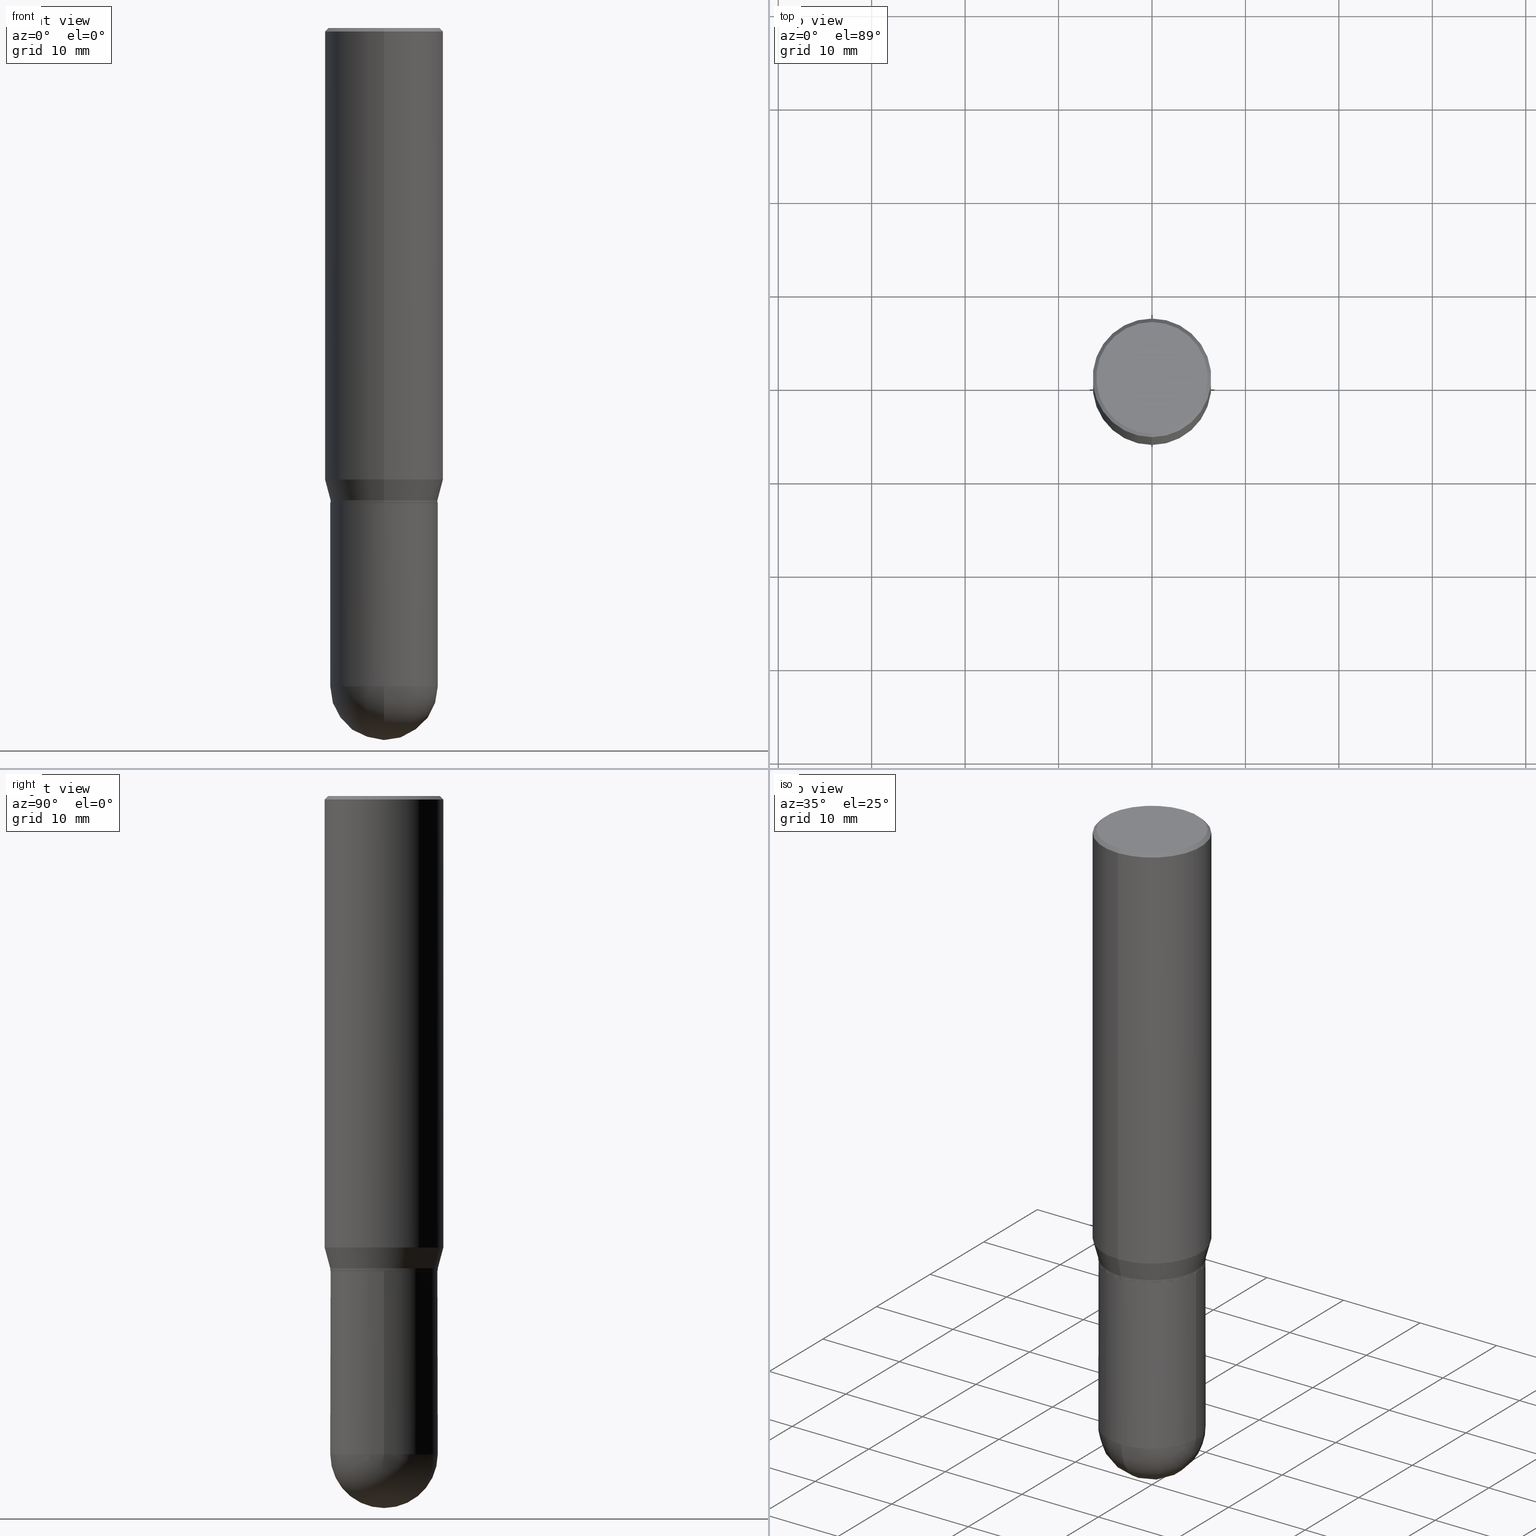
[diagram: canonical four-view strip — front | top / right | iso, engineering-drawing reading convention]
A machine part, canonical four-view strip (front | top / right | iso — engineering-drawing reading convention). The complete STEP part file that produces these views, byte-faithful:
ISO-10303-21;
HEADER;
FILE_DESCRIPTION (( 'STEP AP203' ),
    '1' );
FILE_NAME ('30879.STEP',
    '2024-03-08T15:42:41',
    ( '' ),
    ( '' ),
    'SwSTEP 2.0',
    'SolidWorks 2023',
    '' );
FILE_SCHEMA (( 'CONFIG_CONTROL_DESIGN' ));
ENDSEC;

DATA;
#1 = VERTEX_POINT ( 'NONE', #313 ) ;
#2 = EDGE_CURVE ( 'NONE', #148, #225, #274, .T. ) ;
#3 = ORIENTED_EDGE ( 'NONE', *, *, #407, .F. ) ;
#4 = LINE ( 'NONE', #319, #181 ) ;
#5 = CARTESIAN_POINT ( 'NONE',  ( 3.668330561719621031E-31, -5.237039632319515294E-17, -0.01500000000000010179 ) ) ;
#6 = DIRECTION ( 'NONE',  ( 6.982962677686265133E-15, 1.000000000000000000, 0.000000000000000000 ) ) ;
#7 = DIRECTION ( 'NONE',  ( -6.982962677686265922E-15, -1.000000000000000000, 3.617543138818270030E-15 ) ) ;
#8 = CONICAL_SURFACE ( 'NONE', #430, 0.2500000000000000000, 0.7853981633974485010 ) ;
#9 = ADVANCED_FACE ( 'NONE', ( #238 ), #404, .T. ) ;
#10 = AXIS2_PLACEMENT_3D ( 'NONE', #109, #433, #75 ) ;
#11 = MANIFOLD_SOLID_BREP ( 'Body-Move/Copy2[2]', #371 ) ;
#12 = CARTESIAN_POINT ( 'NONE',  ( 1.776356839400296613E-15, 0.2499999999999933664, -1.902483408562511302 ) ) ;
#13 = CARTESIAN_POINT ( 'NONE',  ( 1.693368449338919598E-15, 0.2349999999999999867, -9.234465523360647217E-16 ) ) ;
#14 = CARTESIAN_POINT ( 'NONE',  ( 4.890937612370273754E-29, -6.982962677686291954E-15, -2.000000000000000444 ) ) ;
#15 = PRODUCT_DEFINITION_SHAPE ( 'NONE', 'NONE',  #355 ) ;
#16 = CARTESIAN_POINT ( 'NONE',  ( 1.581990194629872833E-15, 0.2265499999999930625, -2.000000000000000888 ) ) ;
#17 = EDGE_CURVE ( 'NONE', #343, #127, #4, .T. ) ;
#18 = VERTEX_POINT ( 'NONE', #406 ) ;
#19 = APPROVAL_STATUS ( 'not_yet_approved' ) ;
#20 = AXIS2_PLACEMENT_3D ( 'NONE', #231, #387, #195 ) ;
#21 = CIRCLE ( 'NONE', #220, 0.2265499999999999459 ) ;
#22 = APPROVAL_ROLE ( '' ) ;
#23 = EDGE_CURVE ( 'NONE', #462, #28, #87, .T. ) ;
#24 = ORIENTED_EDGE ( 'NONE', *, *, #351, .T. ) ;
#25 = CARTESIAN_POINT ( 'NONE',  ( 0.000000000000000000, 0.000000000000000000, 0.000000000000000000 ) ) ;
#26 = APPROVAL ( #420, 'UNSPECIFIED' ) ;
#27 = AXIS2_PLACEMENT_3D ( 'NONE', #165, #200, #353 ) ;
#28 = VERTEX_POINT ( 'NONE', #240 ) ;
#29 = SECURITY_CLASSIFICATION ( '', '', #147 ) ;
#30 = CARTESIAN_POINT ( 'NONE',  ( 6.782385460514168389E-29, -9.683448919214523504E-15, -2.773450000000000415 ) ) ;
#31 = EDGE_CURVE ( 'NONE', #343, #89, #267, .T. ) ;
#32 = DIMENSIONAL_EXPONENTS ( 1.000000000000000000, 0.000000000000000000, 0.000000000000000000, 0.000000000000000000, 0.000000000000000000, 0.000000000000000000, 0.000000000000000000 ) ;
#33 = FACE_OUTER_BOUND ( 'NONE', #388, .T. ) ;
#34 = CIRCLE ( 'NONE', #218, 0.2265499999999999736 ) ;
#35 = CARTESIAN_POINT ( 'NONE',  ( 0.2265500000000000291, -9.915195993080232639E-15, -2.773450000000000415 ) ) ;
#36 = CC_DESIGN_PERSON_AND_ORGANIZATION_ASSIGNMENT ( #325, #411, ( #424 ) ) ;
#37 = CARTESIAN_POINT ( 'NONE',  ( 3.668330561719621031E-31, -5.237039632319515294E-17, -0.01500000000000010179 ) ) ;
#38 = DIRECTION ( 'NONE',  ( -2.445553707813064024E-29, 3.491359754879653000E-15, 1.000000000000000000 ) ) ;
#39 = CARTESIAN_POINT ( 'NONE',  ( 4.889884638772221761E-29, -6.980973829881867702E-15, -1.999500000000000277 ) ) ;
#40 = ADVANCED_FACE ( 'NONE', ( #418 ), #342, .T. ) ;
#41 = ORIENTED_EDGE ( 'NONE', *, *, #407, .T. ) ;
#42 = UNCERTAINTY_MEASURE_WITH_UNIT (LENGTH_MEASURE( 1.000000000000000082E-05 ), #179, 'distance_accuracy_value', 'NONE');
#43 = ORIENTED_EDGE ( 'NONE', *, *, #441, .T. ) ;
#44 = AXIS2_PLACEMENT_3D ( 'NONE', #234, #402, #305 ) ;
#45 = DIRECTION ( 'NONE',  ( -1.000000000000000000, 7.105427357601001070E-15, -4.926315508542082329E-29 ) ) ;
#46 = CARTESIAN_POINT ( 'NONE',  ( 0.000000000000000000, 0.000000000000000000, 0.000000000000000000 ) ) ;
#47 = DIRECTION ( 'NONE',  ( 1.000000000000000000, -6.982962677686265922E-15, 4.883557194083112340E-29 ) ) ;
#48 = CARTESIAN_POINT ( 'NONE',  ( -1.581990194629774423E-15, -0.2265500000000069125, -1.989999999999999547 ) ) ;
#49 = DIRECTION ( 'NONE',  ( -2.445468806185136597E-29, 3.491481338843145583E-15, 1.000000000000000000 ) ) ;
#50 = FACE_OUTER_BOUND ( 'NONE', #170, .T. ) ;
#51 = CARTESIAN_POINT ( 'NONE',  ( -1.663670764459595899E-15, -0.2349999999999999867, 7.174925324573721132E-16 ) ) ;
#52 = PERSON_AND_ORGANIZATION ( #510, #323 ) ;
#53 = DIRECTION ( 'NONE',  ( -6.982962677686265922E-15, -1.000000000000000000, 3.491643216902136408E-15 ) ) ;
#54 = CARTESIAN_POINT ( 'NONE',  ( 4.866651878547998394E-29, -6.947805912210510858E-15, -1.990000000000000435 ) ) ;
#55 = ADVANCED_FACE ( 'NONE', ( #157 ), #77, .F. ) ;
#56 =( GEOMETRIC_REPRESENTATION_CONTEXT ( 3 ) GLOBAL_UNCERTAINTY_ASSIGNED_CONTEXT ( ( #42 ) ) GLOBAL_UNIT_ASSIGNED_CONTEXT ( ( #179, #283, #414 ) ) REPRESENTATION_CONTEXT ( 'NONE', 'WORKASPACE' ) );
#57 = DIRECTION ( 'NONE',  ( 1.000000000000000000, -6.982962677686266711E-15, 0.000000000000000000 ) ) ;
#58 = LOCAL_TIME ( 10, 42, 41.00000000000000000, #381 ) ;
#59 = EDGE_CURVE ( 'NONE', #505, #241, #246, .T. ) ;
#60 = PLANE ( 'NONE',  #72 ) ;
#61 = DIRECTION ( 'NONE',  ( 0.000000000000000000, 0.000000000000000000, 1.000000000000000000 ) ) ;
#62 = ADVANCED_FACE ( 'NONE', ( #307 ), #435, .T. ) ;
#63 = ORIENTED_EDGE ( 'NONE', *, *, #115, .F. ) ;
#64 = VECTOR ( 'NONE', #149, 39.37007874015748143 ) ;
#65 = CIRCLE ( 'NONE', #100, 0.2260500000000000287 ) ;
#66 = CARTESIAN_POINT ( 'NONE',  ( -0.2265500000000000291, -6.723471230585900551E-15, -2.773450000000000415 ) ) ;
#67 = VERTEX_POINT ( 'NONE', #268 ) ;
#68 = PERSON_AND_ORGANIZATION_ROLE ( 'design_supplier' ) ;
#69 = APPROVAL_STATUS ( 'not_yet_approved' ) ;
#70 = AXIS2_PLACEMENT_3D ( 'NONE', #455, #45, #459 ) ;
#71 = EDGE_LOOP ( 'NONE', ( #333, #398, #503, #447 ) ) ;
#72 = AXIS2_PLACEMENT_3D ( 'NONE', #16, #180, #237 ) ;
#73 = FACE_OUTER_BOUND ( 'NONE', #222, .T. ) ;
#74 = EDGE_CURVE ( 'NONE', #229, #148, #273, .T. ) ;
#75 = DIRECTION ( 'NONE',  ( 6.982962677686265922E-15, 1.000000000000000000, -2.411695425878847213E-15 ) ) ;
#76 = APPROVAL ( #69, 'UNSPECIFIED' ) ;
#77 = PLANE ( 'NONE',  #20 ) ;
#78 = ORIENTED_EDGE ( 'NONE', *, *, #74, .T. ) ;
#79 = VERTEX_POINT ( 'NONE', #438 ) ;
#80 = CARTESIAN_POINT ( 'NONE',  ( -1.581990194629823332E-15, -0.2265499999999999736, 7.909675524679853217E-16 ) ) ;
#81 = DIRECTION ( 'NONE',  ( -6.982962677686265922E-15, -1.000000000000000000, 3.617543138818270030E-15 ) ) ;
#82 = DIRECTION ( 'NONE',  ( -2.445468806185136597E-29, 3.491481338843145583E-15, 1.000000000000000000 ) ) ;
#83 = ORIENTED_EDGE ( 'NONE', *, *, #124, .F. ) ;
#84 = CIRCLE ( 'NONE', #154, 0.2265500000000000291 ) ;
#85 = CYLINDRICAL_SURFACE ( 'NONE', #278, 0.2265500000000000291 ) ;
#86 = VECTOR ( 'NONE', #249, 39.37007874015748854 ) ;
#87 = LINE ( 'NONE', #277, #126 ) ;
#88 = EDGE_CURVE ( 'NONE', #494, #148, #34, .T. ) ;
#89 = VERTEX_POINT ( 'NONE', #51 ) ;
#90 = MECHANICAL_CONTEXT ( 'NONE', #188, 'mechanical' ) ;
#91 = CARTESIAN_POINT ( 'NONE',  ( 6.784390825462294501E-29, -9.680577122470524352E-15, -2.773450000000000415 ) ) ;
#92 = CIRCLE ( 'NONE', #70, 0.2265499999999999459 ) ;
#93 = CONICAL_SURFACE ( 'NONE', #155, 0.2260500000000000287, 0.7853981633974824739 ) ;
#94 = CARTESIAN_POINT ( 'NONE',  ( 1.609734567864555299E-15, 0.2265499999999930347, -1.990000000000001101 ) ) ;
#95 = CC_DESIGN_PERSON_AND_ORGANIZATION_ASSIGNMENT ( #286, #373, ( #355 ) ) ;
#96 = ORIENTED_EDGE ( 'NONE', *, *, #476, .F. ) ;
#97 = ORIENTED_EDGE ( 'NONE', *, *, #322, .T. ) ;
#98 = ORIENTED_EDGE ( 'NONE', *, *, #347, .F. ) ;
#99 = DIRECTION ( 'NONE',  ( 1.000000000000000000, -6.982962677686266711E-15, 0.000000000000000000 ) ) ;
#100 = AXIS2_PLACEMENT_3D ( 'NONE', #133, #135, #458 ) ;
#101 = ORIENTED_EDGE ( 'NONE', *, *, #508, .T. ) ;
#102 = CALENDAR_DATE ( 2024, 8, 3 ) ;
#103 = DATE_AND_TIME ( #102, #58 ) ;
#104 = EDGE_CURVE ( 'NONE', #28, #1, #429, .T. ) ;
#105 = DIRECTION ( 'NONE',  ( -6.982962677686265922E-15, -1.000000000000000000, 3.617543138818270030E-15 ) ) ;
#106 = VECTOR ( 'NONE', #324, 39.37007874015748143 ) ;
#107 = ORIENTED_EDGE ( 'NONE', *, *, #2, .F. ) ;
#108 = AXIS2_PLACEMENT_3D ( 'NONE', #163, #197, #511 ) ;
#109 = CARTESIAN_POINT ( 'NONE',  ( 6.784390825462294501E-29, -9.680577122470524352E-15, -2.773450000000000415 ) ) ;
#110 = DIRECTION ( 'NONE',  ( -6.982962677686265922E-15, -1.000000000000000000, 3.491359754879653000E-15 ) ) ;
#111 = DIRECTION ( 'NONE',  ( 6.982962677686265922E-15, 1.000000000000000000, -3.491643216902136408E-15 ) ) ;
#112 = DIRECTION ( 'NONE',  ( -2.445553707813064024E-29, 3.491359754879653000E-15, 1.000000000000000000 ) ) ;
#113 = AXIS2_PLACEMENT_3D ( 'NONE', #150, #379, #337 ) ;
#114 = LOCAL_TIME ( 10, 42, 41.00000000000000000, #226 ) ;
#115 = EDGE_CURVE ( 'NONE', #241, #166, #375, .T. ) ;
#116 = DIRECTION ( 'NONE',  ( -6.982962677686265922E-15, -1.000000000000000000, 3.491359754879653000E-15 ) ) ;
#117 = EDGE_LOOP ( 'NONE', ( #352, #145, #335, #294, #487 ) ) ;
#118 = CARTESIAN_POINT ( 'NONE',  ( 6.782385460514168389E-29, -9.683448919214523504E-15, -2.773450000000000415 ) ) ;
#119 = APPLICATION_CONTEXT ( 'configuration controlled 3d designs of mechanical parts and assemblies' ) ;
#120 = CARTESIAN_POINT ( 'NONE',  ( -1.581990194629774028E-15, -0.2265500000000069125, -1.999499999999999611 ) ) ;
#121 = DIRECTION ( 'NONE',  ( -2.445553707813064024E-29, 3.491359754879653000E-15, 1.000000000000000000 ) ) ;
#122 = EDGE_LOOP ( 'NONE', ( #271, #432, #483, #363 ) ) ;
#123 = FACE_OUTER_BOUND ( 'NONE', #416, .T. ) ;
#124 = EDGE_CURVE ( 'NONE', #251, #166, #92, .T. ) ;
#125 = DIRECTION ( 'NONE',  ( 4.937700262164548831E-15, 0.7071067811865452413, -0.7071067811865497932 ) ) ;
#126 = VECTOR ( 'NONE', #445, 39.37007874015748143 ) ;
#127 = VERTEX_POINT ( 'NONE', #490 ) ;
#128 = CIRCLE ( 'NONE', #196, 0.2500000000000000000 ) ;
#129 = CARTESIAN_POINT ( 'NONE',  ( 4.890937612370273754E-29, -6.982962677686291954E-15, -2.000000000000000444 ) ) ;
#130 = CC_DESIGN_APPROVAL ( #76, ( #189 ) ) ;
#131 = APPLICATION_PROTOCOL_DEFINITION ( 'international standard', 'config_control_design', 1994, #188 ) ;
#132 = ADVANCED_FACE ( 'NONE', ( #138 ), #85, .T. ) ;
#133 = CARTESIAN_POINT ( 'NONE',  ( 4.891107415626128608E-29, -6.982719509759306788E-15, -2.000000000000000444 ) ) ;
#134 = CALENDAR_DATE ( 2024, 8, 3 ) ;
#135 = DIRECTION ( 'NONE',  ( -2.445553707813064024E-29, 3.491359754879653000E-15, 1.000000000000000000 ) ) ;
#136 = ORIENTED_EDGE ( 'NONE', *, *, #88, .T. ) ;
#137 = CIRCLE ( 'NONE', #493, 0.2500000000000000000 ) ;
#138 = FACE_OUTER_BOUND ( 'NONE', #199, .T. ) ;
#139 =( LENGTH_UNIT ( ) NAMED_UNIT ( * ) SI_UNIT ( $, .METRE. ) );
#140 = ADVANCED_FACE ( 'NONE', ( #367 ), #169, .T. ) ;
#141 = PERSON_AND_ORGANIZATION_ROLE ( 'classification_officer' ) ;
#142 = CLOSED_SHELL ( 'NONE', ( #132, #301, #378, #62, #9 ) ) ;
#143 = LOCAL_TIME ( 10, 42, 41.00000000000000000, #488 ) ;
#144 = APPROVAL_PERSON_ORGANIZATION ( #185, #26, #22 ) ;
#145 = ORIENTED_EDGE ( 'NONE', *, *, #115, .T. ) ;
#146 = EDGE_CURVE ( 'NONE', #494, #79, #164, .T. ) ;
#147 = SECURITY_CLASSIFICATION_LEVEL ( 'unclassified' ) ;
#148 = VERTEX_POINT ( 'NONE', #120 ) ;
#149 = DIRECTION ( 'NONE',  ( -2.445468806185136877E-29, 3.491481338843145188E-15, 1.000000000000000000 ) ) ;
#150 = CARTESIAN_POINT ( 'NONE',  ( 2.518358084766711296E-45, -3.595297881800758106E-31, -1.029770099393463289E-16 ) ) ;
#151 = ORIENTED_EDGE ( 'NONE', *, *, #74, .F. ) ;
#152 = PERSON_AND_ORGANIZATION ( #510, #323 ) ;
#153 = EDGE_CURVE ( 'NONE', #79, #225, #471, .T. ) ;
#154 = AXIS2_PLACEMENT_3D ( 'NONE', #30, #504, #99 ) ;
#155 = AXIS2_PLACEMENT_3D ( 'NONE', #230, #38, #156 ) ;
#156 = DIRECTION ( 'NONE',  ( -6.982962677686265133E-15, -1.000000000000000000, 3.625544782567037861E-15 ) ) ;
#157 = FACE_OUTER_BOUND ( 'NONE', #167, .T. ) ;
#158 = CARTESIAN_POINT ( 'NONE',  ( 0.000000000000000000, 0.000000000000000000, 0.000000000000000000 ) ) ;
#159 = DIRECTION ( 'NONE',  ( 1.000000000000000000, -6.982962677686266711E-15, 0.000000000000000000 ) ) ;
#160 = ORIENTED_EDGE ( 'NONE', *, *, #31, .F. ) ;
#161 = FACE_OUTER_BOUND ( 'NONE', #344, .T. ) ;
#162 = AXIS2_PLACEMENT_3D ( 'NONE', #158, #112, #266 ) ;
#163 = CARTESIAN_POINT ( 'NONE',  ( 6.782385460514168389E-29, -9.683448919214523504E-15, -2.773450000000000415 ) ) ;
#164 = LINE ( 'NONE', #316, #106 ) ;
#165 = CARTESIAN_POINT ( 'NONE',  ( 6.784390825462294501E-29, -9.680577122470524352E-15, -2.773450000000000415 ) ) ;
#166 = VERTEX_POINT ( 'NONE', #334 ) ;
#167 = EDGE_LOOP ( 'NONE', ( #98, #227 ) ) ;
#168 = DIRECTION ( 'NONE',  ( -6.982962677686265922E-15, -1.000000000000000000, 3.491643216902136408E-15 ) ) ;
#169 = CONICAL_SURFACE ( 'NONE', #492, 0.2265499999999999736, 0.2617993877991505181 ) ;
#170 = EDGE_LOOP ( 'NONE', ( #298, #235 ) ) ;
#171 = CARTESIAN_POINT ( 'NONE',  ( 4.866651878547998394E-29, -6.947805912210510858E-15, -1.990000000000000435 ) ) ;
#172 = AXIS2_PLACEMENT_3D ( 'NONE', #202, #390, #356 ) ;
#173 = DIRECTION ( 'NONE',  ( -6.982962677686266711E-15, -1.000000000000000000, 3.491359754879653394E-15 ) ) ;
#174 = DIRECTION ( 'NONE',  ( -2.445468806185136597E-29, 3.491481338843145583E-15, 1.000000000000000000 ) ) ;
#175 = DIRECTION ( 'NONE',  ( -2.445553707813064024E-29, 3.491359754879653000E-15, 1.000000000000000000 ) ) ;
#176 = DATE_AND_TIME ( #134, #143 ) ;
#177 = PRODUCT_RELATED_PRODUCT_CATEGORY ( 'detail', '', ( #424 ) ) ;
#178 = ORIENTED_EDGE ( 'NONE', *, *, #17, .F. ) ;
#179 =( CONVERSION_BASED_UNIT ( 'INCH', #252 ) LENGTH_UNIT ( ) NAMED_UNIT ( #32 ) );
#180 = DIRECTION ( 'NONE',  ( 2.438088387897960049E-29, -3.491481338843145188E-15, -1.000000000000000000 ) ) ;
#181 = VECTOR ( 'NONE', #125, 39.37007874015748143 ) ;
#182 = AXIS2_PLACEMENT_3D ( 'NONE', #473, #205, #396 ) ;
#183 = APPROVAL_DATE_TIME ( #103, #26 ) ;
#184 = ORIENTED_EDGE ( 'NONE', *, *, #104, .T. ) ;
#185 = PERSON_AND_ORGANIZATION ( #510, #323 ) ;
#186 = CC_DESIGN_PERSON_AND_ORGANIZATION_ASSIGNMENT ( #415, #141, ( #29 ) ) ;
#187 = CYLINDRICAL_SURFACE ( 'NONE', #391, 0.2500000000000000000 ) ;
#188 = APPLICATION_CONTEXT ( 'configuration controlled 3d designs of mechanical parts and assemblies' ) ;
#189 = PRODUCT_DEFINITION_FORMATION_WITH_SPECIFIED_SOURCE ( 'ANY', '', #424, .NOT_KNOWN. ) ;
#190 = ORIENTED_EDGE ( 'NONE', *, *, #347, .T. ) ;
#191 = CARTESIAN_POINT ( 'NONE',  ( -1.745740669421566480E-15, -0.2500000000000000000, 8.728399387199132499E-16 ) ) ;
#192 = MANIFOLD_SOLID_BREP ( 'Body-Move/Copy2[1]', #142 ) ;
#193 = EDGE_CURVE ( 'NONE', #166, #462, #84, .T. ) ;
#194 = DIRECTION ( 'NONE',  ( -2.445553707813064024E-29, 3.491359754879653000E-15, 1.000000000000000000 ) ) ;
#195 = DIRECTION ( 'NONE',  ( -6.982962677686265922E-15, -1.000000000000000000, 3.491359754879653000E-15 ) ) ;
#196 = AXIS2_PLACEMENT_3D ( 'NONE', #243, #417, #491 ) ;
#197 = DIRECTION ( 'NONE',  ( -2.445468806185136597E-29, 3.491481338843145583E-15, 1.000000000000000000 ) ) ;
#198 = CARTESIAN_POINT ( 'NONE',  ( 4.866651878547998394E-29, -6.947805912210510858E-15, -1.990000000000000435 ) ) ;
#199 = EDGE_LOOP ( 'NONE', ( #365, #281, #354, #203, #336 ) ) ;
#200 = DIRECTION ( 'NONE',  ( -1.000000000000000000, 6.982962677686265922E-15, -4.883557194083112901E-29 ) ) ;
#201 = ORIENTED_EDGE ( 'NONE', *, *, #153, .F. ) ;
#202 = CARTESIAN_POINT ( 'NONE',  ( 1.640996229256272519E-15, 0.2349999999999999867, -8.719580473663915449E-16 ) ) ;
#203 = ORIENTED_EDGE ( 'NONE', *, *, #23, .F. ) ;
#204 = LINE ( 'NONE', #48, #247 ) ;
#205 = DIRECTION ( 'NONE',  ( -2.445553707813064024E-29, 3.491359754879653000E-15, 1.000000000000000000 ) ) ;
#206 = CIRCLE ( 'NONE', #330, 0.2260500000000000287 ) ;
#207 = DIRECTION ( 'NONE',  ( -2.445468806185136597E-29, 3.491481338843145583E-15, 1.000000000000000000 ) ) ;
#208 = ORIENTED_EDGE ( 'NONE', *, *, #193, .F. ) ;
#209 = CARTESIAN_POINT ( 'NONE',  ( 0.000000000000000000, 0.000000000000000000, 0.000000000000000000 ) ) ;
#210 = DIRECTION ( 'NONE',  ( 1.000000000000000000, -6.982962677686266711E-15, 4.876176775795935793E-29 ) ) ;
#211 = DIRECTION ( 'NONE',  ( 1.000000000000000000, -6.982962677686266711E-15, 0.000000000000000000 ) ) ;
#212 = EDGE_CURVE ( 'NONE', #499, #127, #377, .T. ) ;
#213 = AXIS2_PLACEMENT_3D ( 'NONE', #448, #452, #53 ) ;
#214 = EDGE_CURVE ( 'NONE', #241, #1, #465, .T. ) ;
#215 = DIRECTION ( 'NONE',  ( -6.982962677686265922E-15, -1.000000000000000000, 3.617543138818270030E-15 ) ) ;
#216 = APPLICATION_PROTOCOL_DEFINITION ( 'international standard', 'config_control_design', 1994, #119 ) ;
#217 = PERSON_AND_ORGANIZATION ( #510, #323 ) ;
#218 = AXIS2_PLACEMENT_3D ( 'NONE', #321, #175, #215 ) ;
#219 = ORIENTED_EDGE ( 'NONE', *, *, #59, .F. ) ;
#220 = AXIS2_PLACEMENT_3D ( 'NONE', #91, #47, #6 ) ;
#221 = EDGE_CURVE ( 'NONE', #67, #18, #341, .T. ) ;
#222 = EDGE_LOOP ( 'NONE', ( #423, #315, #405, #178 ) ) ;
#223 = SHAPE_DEFINITION_REPRESENTATION ( #15, #467 ) ;
#224 = CIRCLE ( 'NONE', #293, 0.2500000000000000000 ) ;
#225 = VERTEX_POINT ( 'NONE', #296 ) ;
#226 = COORDINATED_UNIVERSAL_TIME_OFFSET ( 5, 0, .BEHIND. ) ;
#227 = ORIENTED_EDGE ( 'NONE', *, *, #508, .F. ) ;
#228 = DIRECTION ( 'NONE',  ( -6.982962677686265922E-15, -1.000000000000000000, 3.278217592397115862E-15 ) ) ;
#229 = VERTEX_POINT ( 'NONE', #422 ) ;
#230 = CARTESIAN_POINT ( 'NONE',  ( 4.891107415626128608E-29, -6.982719509759306788E-15, -2.000000000000000444 ) ) ;
#231 = CARTESIAN_POINT ( 'NONE',  ( 4.891107415626128608E-29, -6.982719509759306788E-15, -2.000000000000000444 ) ) ;
#232 = APPROVAL_PERSON_ORGANIZATION ( #52, #331, #370 ) ;
#233 = AXIS2_PLACEMENT_3D ( 'NONE', #288, #362, #173 ) ;
#234 = CARTESIAN_POINT ( 'NONE',  ( 4.866651878547998394E-29, -6.947805912210510858E-15, -1.990000000000000435 ) ) ;
#235 = ORIENTED_EDGE ( 'NONE', *, *, #346, .T. ) ;
#236 = DIRECTION ( 'NONE',  ( -2.445553707813064024E-29, 3.491359754879653000E-15, 1.000000000000000000 ) ) ;
#237 = DIRECTION ( 'NONE',  ( -1.000000000000000000, 6.982962677686265922E-15, -4.876176775795935793E-29 ) ) ;
#238 = FACE_OUTER_BOUND ( 'NONE', #117, .T. ) ;
#239 = CIRCLE ( 'NONE', #279, 0.2265499999999999736 ) ;
#240 = CARTESIAN_POINT ( 'NONE',  ( 0.2265500000000000291, -8.564952872316116075E-15, -2.000000000000000444 ) ) ;
#241 = VERTEX_POINT ( 'NONE', #66 ) ;
#242 = DIRECTION ( 'NONE',  ( -6.982962677686265922E-15, -1.000000000000000000, 3.617543138818270030E-15 ) ) ;
#243 = CARTESIAN_POINT ( 'NONE',  ( 4.652625353862883920E-29, -6.642254006981412972E-15, -1.902483408562510414 ) ) ;
#244 = CARTESIAN_POINT ( 'NONE',  ( 4.891107415626128608E-29, -6.982719509759306788E-15, -2.000000000000000444 ) ) ;
#245 = DIRECTION ( 'NONE',  ( -2.445468806185136597E-29, 3.491481338843145583E-15, 1.000000000000000000 ) ) ;
#246 = CIRCLE ( 'NONE', #287, 0.2265500000000000291 ) ;
#247 = VECTOR ( 'NONE', #443, 39.37007874015748854 ) ;
#248 = CARTESIAN_POINT ( 'NONE',  ( 0.000000000000000000, 0.000000000000000000, 0.000000000000000000 ) ) ;
#249 = DIRECTION ( 'NONE',  ( 1.839019923739601893E-15, 0.2588190451025252359, 0.9659258262890670910 ) ) ;
#250 = ADVANCED_FACE ( 'NONE', ( #469 ), #187, .T. ) ;
#251 = VERTEX_POINT ( 'NONE', #431 ) ;
#252 = LENGTH_MEASURE_WITH_UNIT ( LENGTH_MEASURE( 0.02539999999999999897 ), #139 );
#253 = DATE_TIME_ROLE ( 'classification_date' ) ;
#254 = CARTESIAN_POINT ( 'NONE',  ( -0.2265500000000000291, 1.609734567864507178E-15, -1.114384744697249003E-29 ) ) ;
#255 = ORIENTED_EDGE ( 'NONE', *, *, #221, .T. ) ;
#256 = CALENDAR_DATE ( 2024, 8, 3 ) ;
#257 = EDGE_LOOP ( 'NONE', ( #41, #408, #440, #107 ) ) ;
#258 = CC_DESIGN_DATE_AND_TIME_ASSIGNMENT ( #496, #259, ( #355 ) ) ;
#259 = DATE_TIME_ROLE ( 'creation_date' ) ;
#260 = ORIENTED_EDGE ( 'NONE', *, *, #124, .T. ) ;
#261 = AXIS2_PLACEMENT_3D ( 'NONE', #198, #409, #242 ) ;
#262 = DIRECTION ( 'NONE',  ( -6.982962677686265922E-15, -1.000000000000000000, 3.491359754879653000E-15 ) ) ;
#263 = SPHERICAL_SURFACE ( 'NONE', #10, 0.2265499999999999459 ) ;
#264 = FACE_OUTER_BOUND ( 'NONE', #257, .T. ) ;
#265 = ADVANCED_FACE ( 'NONE', ( #73 ), #456, .T. ) ;
#266 = DIRECTION ( 'NONE',  ( -6.982962677686265922E-15, -1.000000000000000000, 3.491359754879653000E-15 ) ) ;
#267 = CIRCLE ( 'NONE', #113, 0.2349999999999999867 ) ;
#268 = CARTESIAN_POINT ( 'NONE',  ( -1.745740669421519543E-15, -0.2500000000000066058, -1.902483408562509748 ) ) ;
#269 = AXIS2_PLACEMENT_3D ( 'NONE', #477, #236, #116 ) ;
#270 = CC_DESIGN_SECURITY_CLASSIFICATION ( #29, ( #189 ) ) ;
#271 = ORIENTED_EDGE ( 'NONE', *, *, #292, .T. ) ;
#272 = EDGE_CURVE ( 'NONE', #89, #18, #389, .T. ) ;
#273 = LINE ( 'NONE', #311, #506 ) ;
#274 = LINE ( 'NONE', #80, #498 ) ;
#275 = ADVANCED_FACE ( 'NONE', ( #264 ), #306, .T. ) ;
#276 = ORIENTED_EDGE ( 'NONE', *, *, #292, .F. ) ;
#277 = CARTESIAN_POINT ( 'NONE',  ( 0.2265500000000000291, -1.581990194629823924E-15, 1.104697848556569421E-29 ) ) ;
#278 = AXIS2_PLACEMENT_3D ( 'NONE', #209, #49, #210 ) ;
#279 = AXIS2_PLACEMENT_3D ( 'NONE', #39, #437, #81 ) ;
#280 = ORIENTED_EDGE ( 'NONE', *, *, #212, .F. ) ;
#281 = ORIENTED_EDGE ( 'NONE', *, *, #214, .T. ) ;
#282 = DIRECTION ( 'NONE',  ( -6.982962677686265133E-15, -1.000000000000000000, 3.625544782567037861E-15 ) ) ;
#283 =( NAMED_UNIT ( * ) PLANE_ANGLE_UNIT ( ) SI_UNIT ( $, .RADIAN. ) );
#284 = DATE_AND_TIME ( #366, #312 ) ;
#285 = DESIGN_CONTEXT ( 'detailed design', #119, 'design' ) ;
#286 = PERSON_AND_ORGANIZATION ( #510, #323 ) ;
#287 = AXIS2_PLACEMENT_3D ( 'NONE', #118, #395, #159 ) ;
#288 = CARTESIAN_POINT ( 'NONE',  ( 2.518358084766711296E-45, -3.595297881800758106E-31, -1.029770099393463289E-16 ) ) ;
#289 = CIRCLE ( 'NONE', #213, 0.2500000000000000000 ) ;
#290 = ORIENTED_EDGE ( 'NONE', *, *, #454, .T. ) ;
#291 = EDGE_LOOP ( 'NONE', ( #308, #160, #474, #329 ) ) ;
#292 = EDGE_CURVE ( 'NONE', #67, #499, #224, .T. ) ;
#293 = AXIS2_PLACEMENT_3D ( 'NONE', #509, #194, #228 ) ;
#294 = ORIENTED_EDGE ( 'NONE', *, *, #23, .T. ) ;
#295 = ADVANCED_FACE ( 'NONE', ( #434 ), #93, .T. ) ;
#296 = CARTESIAN_POINT ( 'NONE',  ( -1.581990194629774423E-15, -0.2265500000000069125, -1.989999999999999547 ) ) ;
#297 = CARTESIAN_POINT ( 'NONE',  ( 0.000000000000000000, 0.000000000000000000, 0.000000000000000000 ) ) ;
#298 = ORIENTED_EDGE ( 'NONE', *, *, #31, .T. ) ;
#299 = CALENDAR_DATE ( 2024, 8, 3 ) ;
#300 = AXIS2_PLACEMENT_3D ( 'NONE', #54, #478, #105 ) ;
#301 = ADVANCED_FACE ( 'NONE', ( #394 ), #263, .T. ) ;
#302 = CIRCLE ( 'NONE', #261, 0.2265499999999999736 ) ;
#303 = DIRECTION ( 'NONE',  ( -4.851104656540965064E-15, -0.7071067811865501263, -0.7071067811865449082 ) ) ;
#304 = ADVANCED_FACE ( 'NONE', ( #33 ), #393, .T. ) ;
#305 = DIRECTION ( 'NONE',  ( -6.982962677686265922E-15, -1.000000000000000000, 3.617543138818270030E-15 ) ) ;
#306 = CYLINDRICAL_SURFACE ( 'NONE', #162, 0.2265499999999999736 ) ;
#307 = FACE_OUTER_BOUND ( 'NONE', #380, .T. ) ;
#308 = ORIENTED_EDGE ( 'NONE', *, *, #272, .F. ) ;
#309 = CYLINDRICAL_SURFACE ( 'NONE', #269, 0.2265499999999999736 ) ;
#310 = AXIS2_PLACEMENT_3D ( 'NONE', #372, #82, #327 ) ;
#311 = CARTESIAN_POINT ( 'NONE',  ( -1.578498713290931613E-15, -0.2260500000000069953, -1.999999999999999334 ) ) ;
#312 = LOCAL_TIME ( 10, 42, 41.00000000000000000, #453 ) ;
#313 = CARTESIAN_POINT ( 'NONE',  ( -0.2265500000000000291, -6.723471230585900551E-15, -2.000000000000000444 ) ) ;
#314 = EDGE_CURVE ( 'NONE', #18, #127, #289, .T. ) ;
#315 = ORIENTED_EDGE ( 'NONE', *, *, #272, .T. ) ;
#316 = CARTESIAN_POINT ( 'NONE',  ( 1.609734567864506586E-15, 0.2265499999999999736, -7.909675524679853217E-16 ) ) ;
#317 = LINE ( 'NONE', #484, #357 ) ;
#318 = ORIENTED_EDGE ( 'NONE', *, *, #322, .F. ) ;
#319 = CARTESIAN_POINT ( 'NONE',  ( 1.745740669421566875E-15, 0.2499999999999999167, -0.01500000000000097609 ) ) ;
#320 = DIRECTION ( 'NONE',  ( 2.445553707813064024E-29, -3.491359754879653000E-15, -1.000000000000000000 ) ) ;
#321 = CARTESIAN_POINT ( 'NONE',  ( 4.889884638772221761E-29, -6.980973829881867702E-15, -1.999500000000000277 ) ) ;
#322 = EDGE_CURVE ( 'NONE', #251, #505, #21, .T. ) ;
#323 = ORGANIZATION ( 'UNSPECIFIED', 'UNSPECIFIED', '' ) ;
#324 = DIRECTION ( 'NONE',  ( -2.445553707813064024E-29, 3.491359754879653000E-15, 1.000000000000000000 ) ) ;
#325 = PERSON_AND_ORGANIZATION ( #510, #323 ) ;
#326 = DIRECTION ( 'NONE',  ( -2.445553707813064024E-29, 3.491359754879653000E-15, 1.000000000000000000 ) ) ;
#327 = DIRECTION ( 'NONE',  ( 1.000000000000000000, -6.982962677686266711E-15, 0.000000000000000000 ) ) ;
#328 = APPROVAL_DATE_TIME ( #176, #331 ) ;
#329 = ORIENTED_EDGE ( 'NONE', *, *, #446, .T. ) ;
#330 = AXIS2_PLACEMENT_3D ( 'NONE', #244, #326, #282 ) ;
#331 = APPROVAL ( #19, 'UNSPECIFIED' ) ;
#332 = DIRECTION ( 'NONE',  ( 1.000000000000000000, 0.000000000000000000, 0.000000000000000000 ) ) ;
#333 = ORIENTED_EDGE ( 'NONE', *, *, #351, .F. ) ;
#334 = CARTESIAN_POINT ( 'NONE',  ( -1.609734567864438547E-15, -0.2265500000000096603, -2.773449999999999971 ) ) ;
#335 = ORIENTED_EDGE ( 'NONE', *, *, #193, .T. ) ;
#336 = ORIENTED_EDGE ( 'NONE', *, *, #476, .T. ) ;
#337 = DIRECTION ( 'NONE',  ( -6.982962677686266711E-15, -1.000000000000000000, 3.491359754879653394E-15 ) ) ;
#338 = DATE_AND_TIME ( #299, #480 ) ;
#339 = AXIS2_PLACEMENT_3D ( 'NONE', #46, #207, #360 ) ;
#340 = CC_DESIGN_APPROVAL ( #331, ( #355 ) ) ;
#341 = LINE ( 'NONE', #191, #419 ) ;
#342 = CYLINDRICAL_SURFACE ( 'NONE', #412, 0.2500000000000000000 ) ;
#343 = VERTEX_POINT ( 'NONE', #13 ) ;
#344 = EDGE_LOOP ( 'NONE', ( #470, #136, #426, #201 ) ) ;
#345 = COORDINATED_UNIVERSAL_TIME_OFFSET ( 5, 0, .BEHIND. ) ;
#346 = EDGE_CURVE ( 'NONE', #89, #343, #507, .T. ) ;
#347 = EDGE_CURVE ( 'NONE', #229, #384, #65, .T. ) ;
#348 = AXIS2_PLACEMENT_3D ( 'NONE', #129, #174, #211 ) ;
#349 = CARTESIAN_POINT ( 'NONE',  ( -1.715124499442882299E-15, -0.2500000000000000555, -0.01499999999999922923 ) ) ;
#350 = CARTESIAN_POINT ( 'NONE',  ( 3.668330561719621031E-31, -5.237039632319515294E-17, -0.01500000000000010179 ) ) ;
#351 = EDGE_CURVE ( 'NONE', #79, #499, #450, .T. ) ;
#352 = ORIENTED_EDGE ( 'NONE', *, *, #214, .F. ) ;
#353 = DIRECTION ( 'NONE',  ( 6.982962677686265922E-15, 1.000000000000000000, -2.411695425878847213E-15 ) ) ;
#354 = ORIENTED_EDGE ( 'NONE', *, *, #104, .F. ) ;
#355 = PRODUCT_DEFINITION ( 'UNKNOWN', '', #189, #285 ) ;
#356 = DIRECTION ( 'NONE',  ( 6.982962677686265922E-15, 1.000000000000000000, -3.491359754879653000E-15 ) ) ;
#357 = VECTOR ( 'NONE', #364, 39.37007874015748854 ) ;
#358 = DIRECTION ( 'NONE',  ( -2.445553707813064024E-29, 3.491359754879653000E-15, 1.000000000000000000 ) ) ;
#359 = EDGE_LOOP ( 'NONE', ( #280, #400, #255, #466 ) ) ;
#360 = DIRECTION ( 'NONE',  ( 1.000000000000000000, -6.982962677686266711E-15, 4.876176775795935793E-29 ) ) ;
#361 = APPROVAL_ROLE ( '' ) ;
#362 = DIRECTION ( 'NONE',  ( -2.445553707813064024E-29, 3.491359754879653000E-15, 1.000000000000000000 ) ) ;
#363 = ORIENTED_EDGE ( 'NONE', *, *, #221, .F. ) ;
#364 = DIRECTION ( 'NONE',  ( 5.024295867788231995E-15, 0.7071067811865739960, 0.7071067811865208164 ) ) ;
#365 = ORIENTED_EDGE ( 'NONE', *, *, #59, .T. ) ;
#366 = CALENDAR_DATE ( 2024, 8, 3 ) ;
#367 = FACE_OUTER_BOUND ( 'NONE', #71, .T. ) ;
#368 = PLANE ( 'NONE',  #172 ) ;
#369 = CC_DESIGN_DATE_AND_TIME_ASSIGNMENT ( #338, #253, ( #29 ) ) ;
#370 = APPROVAL_ROLE ( '' ) ;
#371 = CLOSED_SHELL ( 'NONE', ( #275, #304, #265, #250, #397, #140, #40, #451, #460, #55, #295, #486 ) ) ;
#372 = CARTESIAN_POINT ( 'NONE',  ( 6.782385460514168389E-29, -9.683448919214523504E-15, -2.773450000000000415 ) ) ;
#373 = PERSON_AND_ORGANIZATION_ROLE ( 'creator' ) ;
#374 = EDGE_LOOP ( 'NONE', ( #318, #260, #63, #219 ) ) ;
#375 = CIRCLE ( 'NONE', #310, 0.2265500000000000291 ) ;
#376 = VECTOR ( 'NONE', #303, 39.37007874015748143 ) ;
#377 = LINE ( 'NONE', #497, #444 ) ;
#378 = ADVANCED_FACE ( 'NONE', ( #413 ), #60, .F. ) ;
#379 = DIRECTION ( 'NONE',  ( -2.445553707813064024E-29, 3.491359754879653000E-15, 1.000000000000000000 ) ) ;
#380 = EDGE_LOOP ( 'NONE', ( #83, #97, #96, #208 ) ) ;
#381 = COORDINATED_UNIVERSAL_TIME_OFFSET ( 5, 0, .BEHIND. ) ;
#382 = AXIS2_PLACEMENT_3D ( 'NONE', #14, #245, #57 ) ;
#383 = CIRCLE ( 'NONE', #348, 0.2265500000000000291 ) ;
#384 = VERTEX_POINT ( 'NONE', #392 ) ;
#385 = PERSON_AND_ORGANIZATION_ROLE ( 'creator' ) ;
#386 = DIRECTION ( 'NONE',  ( -2.445553707813064024E-29, 3.491359754879653000E-15, 1.000000000000000000 ) ) ;
#387 = DIRECTION ( 'NONE',  ( -2.445553707813063743E-29, 3.491359754879653000E-15, 1.000000000000000000 ) ) ;
#388 = EDGE_LOOP ( 'NONE', ( #190, #43, #3, #151 ) ) ;
#389 = LINE ( 'NONE', #349, #376 ) ;
#390 = DIRECTION ( 'NONE',  ( 2.445553707813063743E-29, -3.491359754879653000E-15, -1.000000000000000000 ) ) ;
#391 = AXIS2_PLACEMENT_3D ( 'NONE', #25, #386, #262 ) ;
#392 = CARTESIAN_POINT ( 'NONE',  ( 1.607958211025155638E-15, 0.2260499999999930620, -2.000000000000000888 ) ) ;
#393 = CONICAL_SURFACE ( 'NONE', #182, 0.2260500000000000287, 0.7853981633974824739 ) ;
#394 = FACE_OUTER_BOUND ( 'NONE', #374, .T. ) ;
#395 = DIRECTION ( 'NONE',  ( -2.445468806185136597E-29, 3.491481338843145583E-15, 1.000000000000000000 ) ) ;
#396 = DIRECTION ( 'NONE',  ( -6.982962677686265133E-15, -1.000000000000000000, 3.625544782567037861E-15 ) ) ;
#397 = ADVANCED_FACE ( 'NONE', ( #123 ), #472, .T. ) ;
#398 = ORIENTED_EDGE ( 'NONE', *, *, #153, .T. ) ;
#399 = CARTESIAN_POINT ( 'NONE',  ( 1.609734567864555693E-15, 0.2265499999999930347, -1.999500000000001165 ) ) ;
#400 = ORIENTED_EDGE ( 'NONE', *, *, #512, .T. ) ;
#401 = DIRECTION ( 'NONE',  ( -2.445553707813064024E-29, 3.491359754879653000E-15, 1.000000000000000000 ) ) ;
#402 = DIRECTION ( 'NONE',  ( -2.445553707813064024E-29, 3.491359754879653000E-15, 1.000000000000000000 ) ) ;
#403 = AXIS2_PLACEMENT_3D ( 'NONE', #248, #61, #332 ) ;
#404 = CYLINDRICAL_SURFACE ( 'NONE', #339, 0.2265500000000000291 ) ;
#405 = ORIENTED_EDGE ( 'NONE', *, *, #314, .T. ) ;
#406 = CARTESIAN_POINT ( 'NONE',  ( -1.745740669421565889E-15, -0.2500000000000000555, -0.01499999999999922923 ) ) ;
#407 = EDGE_CURVE ( 'NONE', #148, #494, #239, .T. ) ;
#408 = ORIENTED_EDGE ( 'NONE', *, *, #146, .T. ) ;
#409 = DIRECTION ( 'NONE',  ( -2.445553707813064024E-29, 3.491359754879653000E-15, 1.000000000000000000 ) ) ;
#410 = CARTESIAN_POINT ( 'NONE',  ( 1.581990194629891371E-15, 0.2265499999999903147, -2.773450000000000859 ) ) ;
#411 = PERSON_AND_ORGANIZATION_ROLE ( 'design_owner' ) ;
#412 = AXIS2_PLACEMENT_3D ( 'NONE', #297, #502, #110 ) ;
#413 = FACE_OUTER_BOUND ( 'NONE', #442, .T. ) ;
#414 =( NAMED_UNIT ( * ) SI_UNIT ( $, .STERADIAN. ) SOLID_ANGLE_UNIT ( ) );
#415 = PERSON_AND_ORGANIZATION ( #510, #323 ) ;
#416 = EDGE_LOOP ( 'NONE', ( #290, #24, #276, #428 ) ) ;
#417 = DIRECTION ( 'NONE',  ( -2.445553707813064024E-29, 3.491359754879653000E-15, 1.000000000000000000 ) ) ;
#418 = FACE_OUTER_BOUND ( 'NONE', #359, .T. ) ;
#419 = VECTOR ( 'NONE', #501, 39.37007874015748143 ) ;
#420 = APPROVAL_STATUS ( 'not_yet_approved' ) ;
#421 = EDGE_CURVE ( 'NONE', #225, #67, #204, .T. ) ;
#422 = CARTESIAN_POINT ( 'NONE',  ( -1.578498713290931613E-15, -0.2260500000000069953, -1.999999999999999334 ) ) ;
#423 = ORIENTED_EDGE ( 'NONE', *, *, #346, .F. ) ;
#424 = PRODUCT ( '30879', '30879', '', ( #90 ) ) ;
#425 = CC_DESIGN_PERSON_AND_ORGANIZATION_ASSIGNMENT ( #217, #68, ( #189 ) ) ;
#426 = ORIENTED_EDGE ( 'NONE', *, *, #2, .T. ) ;
#427 = PERSON_AND_ORGANIZATION ( #510, #323 ) ;
#428 = ORIENTED_EDGE ( 'NONE', *, *, #421, .F. ) ;
#429 = CIRCLE ( 'NONE', #382, 0.2265500000000000291 ) ;
#430 = AXIS2_PLACEMENT_3D ( 'NONE', #37, #320, #485 ) ;
#431 = CARTESIAN_POINT ( 'NONE',  ( 7.348098679644216605E-29, -1.045770003316809804E-14, -3.000000000000000444 ) ) ;
#432 = ORIENTED_EDGE ( 'NONE', *, *, #212, .T. ) ;
#433 = DIRECTION ( 'NONE',  ( -1.000000000000000000, 6.982962677686265922E-15, -4.883557194083112901E-29 ) ) ;
#434 = FACE_OUTER_BOUND ( 'NONE', #461, .T. ) ;
#435 = SPHERICAL_SURFACE ( 'NONE', #27, 0.2265499999999999459 ) ;
#436 = ORIENTED_EDGE ( 'NONE', *, *, #495, .T. ) ;
#437 = DIRECTION ( 'NONE',  ( -2.445553707813064024E-29, 3.491359754879653000E-15, 1.000000000000000000 ) ) ;
#438 = CARTESIAN_POINT ( 'NONE',  ( 1.693045703632425956E-15, 0.2265499999999930347, -1.990000000000001101 ) ) ;
#439 = FACE_OUTER_BOUND ( 'NONE', #291, .T. ) ;
#440 = ORIENTED_EDGE ( 'NONE', *, *, #454, .F. ) ;
#441 = EDGE_CURVE ( 'NONE', #384, #494, #317, .T. ) ;
#442 = EDGE_LOOP ( 'NONE', ( #184, #436 ) ) ;
#443 = DIRECTION ( 'NONE',  ( -1.807323732225331717E-15, -0.2588190451025184080, 0.9659258262890689783 ) ) ;
#444 = VECTOR ( 'NONE', #463, 39.37007874015748143 ) ;
#445 = DIRECTION ( 'NONE',  ( -2.445468806185136877E-29, 3.491481338843145188E-15, 1.000000000000000000 ) ) ;
#446 = EDGE_CURVE ( 'NONE', #127, #18, #137, .T. ) ;
#447 = ORIENTED_EDGE ( 'NONE', *, *, #512, .F. ) ;
#448 = CARTESIAN_POINT ( 'NONE',  ( 3.668330561719621031E-31, -5.237039632319515294E-17, -0.01500000000000010179 ) ) ;
#449 = APPROVAL_DATE_TIME ( #284, #76 ) ;
#450 = LINE ( 'NONE', #94, #86 ) ;
#451 = ADVANCED_FACE ( 'NONE', ( #439 ), #8, .T. ) ;
#452 = DIRECTION ( 'NONE',  ( -2.445553707813064024E-29, 3.491359754879653000E-15, 1.000000000000000000 ) ) ;
#453 = COORDINATED_UNIVERSAL_TIME_OFFSET ( 5, 0, .BEHIND. ) ;
#454 = EDGE_CURVE ( 'NONE', #225, #79, #302, .T. ) ;
#455 = CARTESIAN_POINT ( 'NONE',  ( 6.784390825462294501E-29, -9.680577122470524352E-15, -2.773450000000000415 ) ) ;
#456 = CONICAL_SURFACE ( 'NONE', #464, 0.2500000000000000000, 0.7853981633974485010 ) ;
#457 = CC_DESIGN_APPROVAL ( #26, ( #29 ) ) ;
#458 = DIRECTION ( 'NONE',  ( -6.982962677686265133E-15, -1.000000000000000000, 3.625544782567037861E-15 ) ) ;
#459 = DIRECTION ( 'NONE',  ( -7.105427357601000281E-15, -1.000000000000000000, 0.000000000000000000 ) ) ;
#460 = ADVANCED_FACE ( 'NONE', ( #50 ), #368, .F. ) ;
#461 = EDGE_LOOP ( 'NONE', ( #468, #101, #78, #482 ) ) ;
#462 = VERTEX_POINT ( 'NONE', #35 ) ;
#463 = DIRECTION ( 'NONE',  ( -2.445553707813064024E-29, 3.491359754879653000E-15, 1.000000000000000000 ) ) ;
#464 = AXIS2_PLACEMENT_3D ( 'NONE', #350, #475, #111 ) ;
#465 = LINE ( 'NONE', #254, #64 ) ;
#466 = ORIENTED_EDGE ( 'NONE', *, *, #446, .F. ) ;
#467 = ADVANCED_BREP_SHAPE_REPRESENTATION ( '30879', ( #192, #11, #403 ), #56 ) ;
#468 = ORIENTED_EDGE ( 'NONE', *, *, #441, .F. ) ;
#469 = FACE_OUTER_BOUND ( 'NONE', #122, .T. ) ;
#470 = ORIENTED_EDGE ( 'NONE', *, *, #146, .F. ) ;
#471 = CIRCLE ( 'NONE', #300, 0.2265499999999999736 ) ;
#472 = CONICAL_SURFACE ( 'NONE', #44, 0.2265499999999999736, 0.2617993877991505181 ) ;
#473 = CARTESIAN_POINT ( 'NONE',  ( 4.891107415626128608E-29, -6.982719509759306788E-15, -2.000000000000000444 ) ) ;
#474 = ORIENTED_EDGE ( 'NONE', *, *, #17, .T. ) ;
#475 = DIRECTION ( 'NONE',  ( 2.445553707813064024E-29, -3.491359754879653000E-15, -1.000000000000000000 ) ) ;
#476 = EDGE_CURVE ( 'NONE', #462, #505, #500, .T. ) ;
#477 = CARTESIAN_POINT ( 'NONE',  ( 0.000000000000000000, 0.000000000000000000, 0.000000000000000000 ) ) ;
#478 = DIRECTION ( 'NONE',  ( -2.445553707813064024E-29, 3.491359754879653000E-15, 1.000000000000000000 ) ) ;
#479 = APPROVAL_PERSON_ORGANIZATION ( #427, #76, #361 ) ;
#480 = LOCAL_TIME ( 10, 42, 41.00000000000000000, #345 ) ;
#481 = DIRECTION ( 'NONE',  ( -4.937700262164715281E-15, -0.7071067811865691111, 0.7071067811865257013 ) ) ;
#482 = ORIENTED_EDGE ( 'NONE', *, *, #88, .F. ) ;
#483 = ORIENTED_EDGE ( 'NONE', *, *, #314, .F. ) ;
#484 = CARTESIAN_POINT ( 'NONE',  ( 1.606181854185755583E-15, 0.2260499999999930620, -2.000000000000000888 ) ) ;
#485 = DIRECTION ( 'NONE',  ( 6.982962677686265922E-15, 1.000000000000000000, -3.491643216902136408E-15 ) ) ;
#486 = ADVANCED_FACE ( 'NONE', ( #161 ), #309, .T. ) ;
#487 = ORIENTED_EDGE ( 'NONE', *, *, #495, .F. ) ;
#488 = COORDINATED_UNIVERSAL_TIME_OFFSET ( 5, 0, .BEHIND. ) ;
#489 = CC_DESIGN_PERSON_AND_ORGANIZATION_ASSIGNMENT ( #152, #385, ( #189 ) ) ;
#490 = CARTESIAN_POINT ( 'NONE',  ( 1.776356839400297007E-15, 0.2499999999999999167, -0.01500000000000097609 ) ) ;
#491 = DIRECTION ( 'NONE',  ( -6.982962677686265922E-15, -1.000000000000000000, 3.278217592397115862E-15 ) ) ;
#492 = AXIS2_PLACEMENT_3D ( 'NONE', #171, #401, #7 ) ;
#493 = AXIS2_PLACEMENT_3D ( 'NONE', #5, #121, #168 ) ;
#494 = VERTEX_POINT ( 'NONE', #399 ) ;
#495 = EDGE_CURVE ( 'NONE', #1, #28, #383, .T. ) ;
#496 = DATE_AND_TIME ( #256, #114 ) ;
#497 = CARTESIAN_POINT ( 'NONE',  ( 1.776356839400250267E-15, 0.2500000000000000000, -8.728399387199132499E-16 ) ) ;
#498 = VECTOR ( 'NONE', #358, 39.37007874015748143 ) ;
#499 = VERTEX_POINT ( 'NONE', #12 ) ;
#500 = CIRCLE ( 'NONE', #108, 0.2265500000000000291 ) ;
#501 = DIRECTION ( 'NONE',  ( -2.445553707813064024E-29, 3.491359754879653000E-15, 1.000000000000000000 ) ) ;
#502 = DIRECTION ( 'NONE',  ( -2.445553707813064024E-29, 3.491359754879653000E-15, 1.000000000000000000 ) ) ;
#503 = ORIENTED_EDGE ( 'NONE', *, *, #421, .T. ) ;
#504 = DIRECTION ( 'NONE',  ( -2.445468806185136597E-29, 3.491481338843145583E-15, 1.000000000000000000 ) ) ;
#505 = VERTEX_POINT ( 'NONE', #410 ) ;
#506 = VECTOR ( 'NONE', #481, 39.37007874015748854 ) ;
#507 = CIRCLE ( 'NONE', #233, 0.2349999999999999867 ) ;
#508 = EDGE_CURVE ( 'NONE', #384, #229, #206, .T. ) ;
#509 = CARTESIAN_POINT ( 'NONE',  ( 4.652625353862883920E-29, -6.642254006981412972E-15, -1.902483408562510414 ) ) ;
#510 = PERSON ( 'UNSPECIFIED', 'UNSPECIFIED', 'UNSPECIFIED', ('UNSPECIFIED'), ('UNSPECIFIED'), ('UNSPECIFIED') ) ;
#511 = DIRECTION ( 'NONE',  ( 1.000000000000000000, -6.982962677686266711E-15, 0.000000000000000000 ) ) ;
#512 = EDGE_CURVE ( 'NONE', #499, #67, #128, .T. ) ;
ENDSEC;
END-ISO-10303-21;
